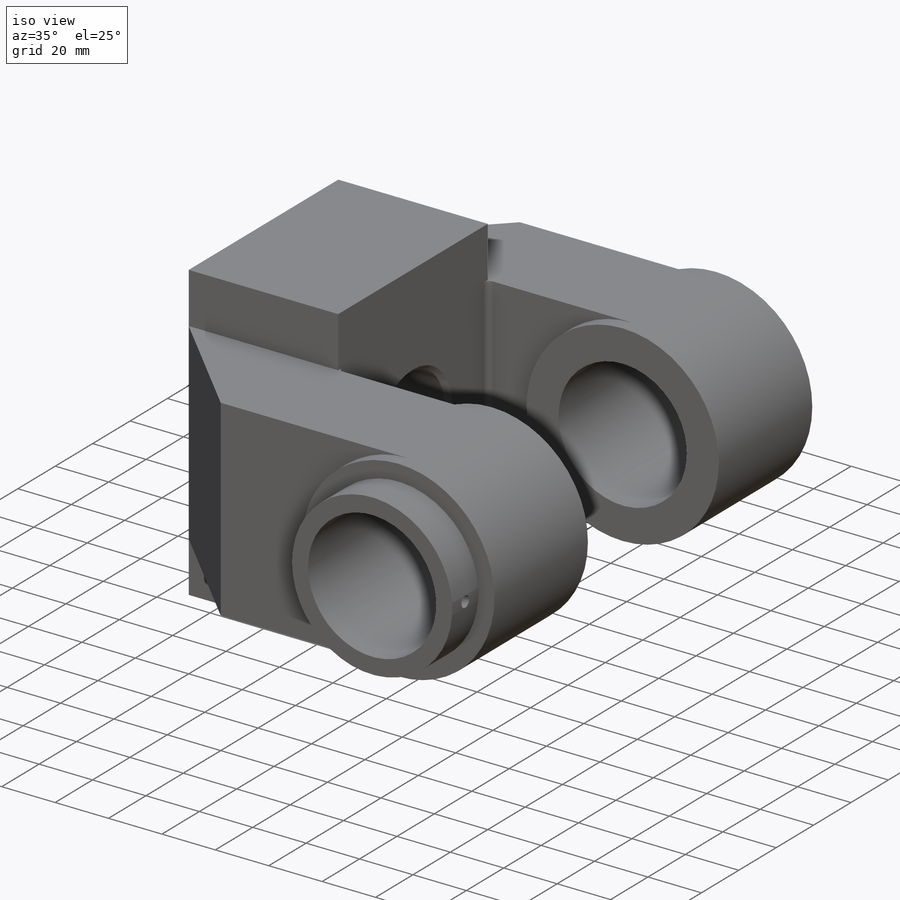
[diagram: iso view]
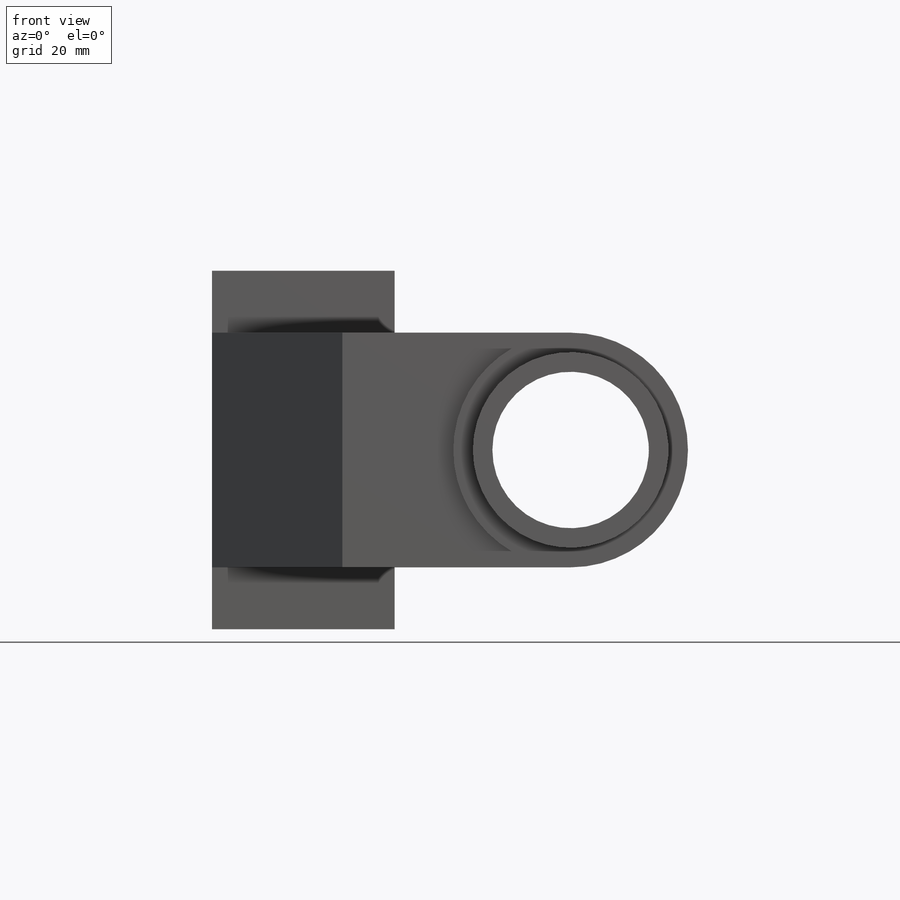
[diagram: front view]
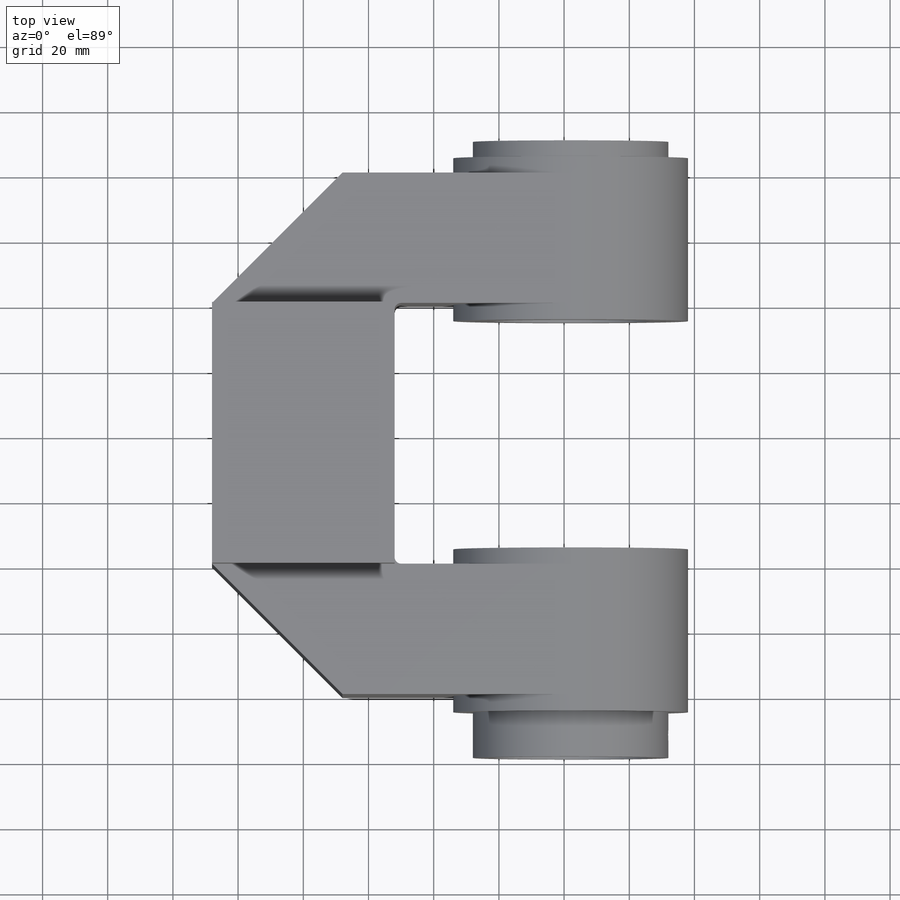
[diagram: top view]
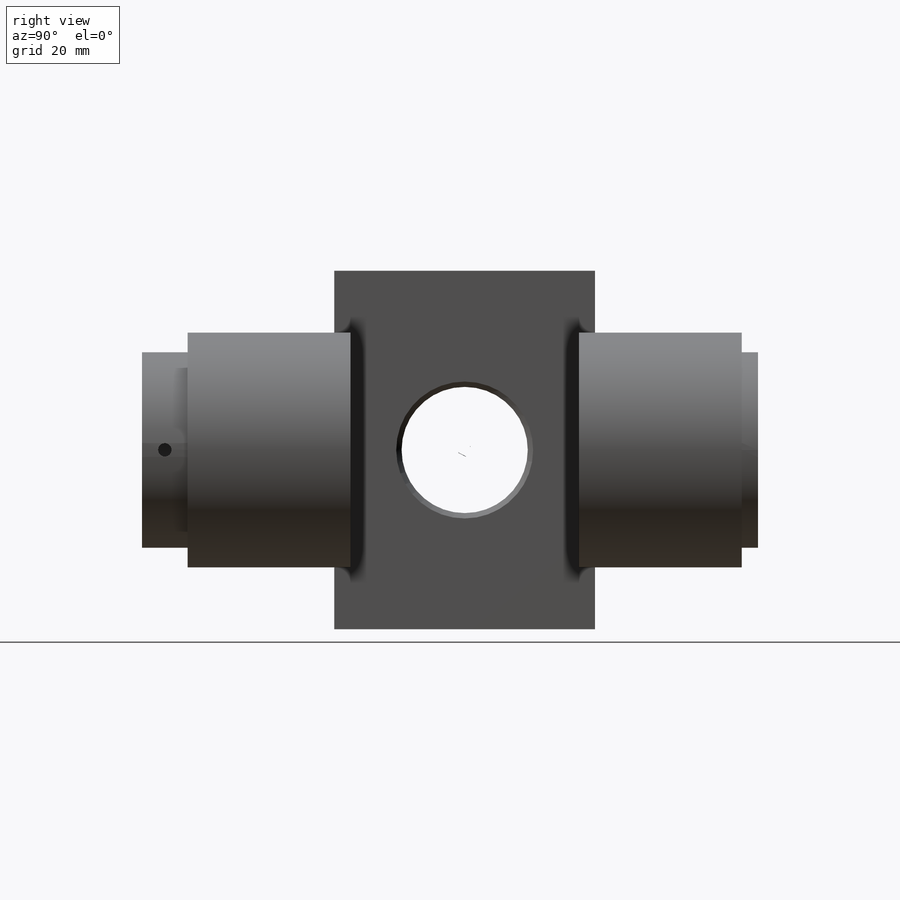
[diagram: right view]
SOLIDWORKS PART (.sldprt)
format: sldprt  version: not decoded by parser v0  size: 376,832 bytes
history: native  units: mm
features: sketch x7, plane x5, extrude x5, chamfer x2, cut_extrude x2, material x1, fillet x1, mirror x1, thread x1 (+9 scaffold rows collapsed)
feature tree (34):
  scaffold x9  (default folders/planes/origin — collapsed)
  material  "Сталь"
  plane  "Спереди"
  plane  "Сверху"
  plane  "Справа"
  sketch  "Эскиз1"  dims[D1=56.0mm D2=110.0mm]
  extrude  "Бобышка-Вытянуть1"  Depth=40mm
  sketch  "Эскиз3"  dims[D3=48.0mm D1=72.0mm D2=110.0mm]
  extrude  "Бобышка-Вытянуть2"  Depth=40mm
  plane  "Плоскость1"
  sketch  "Эскиз4"  dims[D1=65.0mm]
  extrude  "Бобышка-Вытянуть3"  Depth=50mm
  sketch  "Эскиз5"  dims[D1=60.0mm]
  extrude  "Бобышка-Вытянуть4"  Depth=5mm
  chamfer  "Фаска1"  Distance=40mm Angle=45deg
  fillet  "Скругление1"  Radius=2mm
  mirror  "Зеркальное отражение1"
  sketch  "Эскиз6"  dims[D1=38.704mm]
  cut_extrude  "Вырез-Вытянуть1"  [1 undecoded]
  thread  "Условное изображение резьбы1"  Diameter=42mm  [1 undecoded]
  chamfer  "Фаска2"  Distance=1.648mm Angle=45deg
  sketch  "Эскиз7"  dims[D1=0.0mm]
  extrude  "Бобышка-Вытянуть5"  Depth=9mm
  plane  "Плоскость2"
  sketch  "Эскиз8"  dims[D1=4.1mm]
  cut_extrude  "Вырез-Вытянуть2"  [1 undecoded]
decode coverage: 16 of 19 modeling features carry decoded parameters
note: 3 parameter values undecoded
note: suppression state not decoded; provenance and decode notes live in map.json
